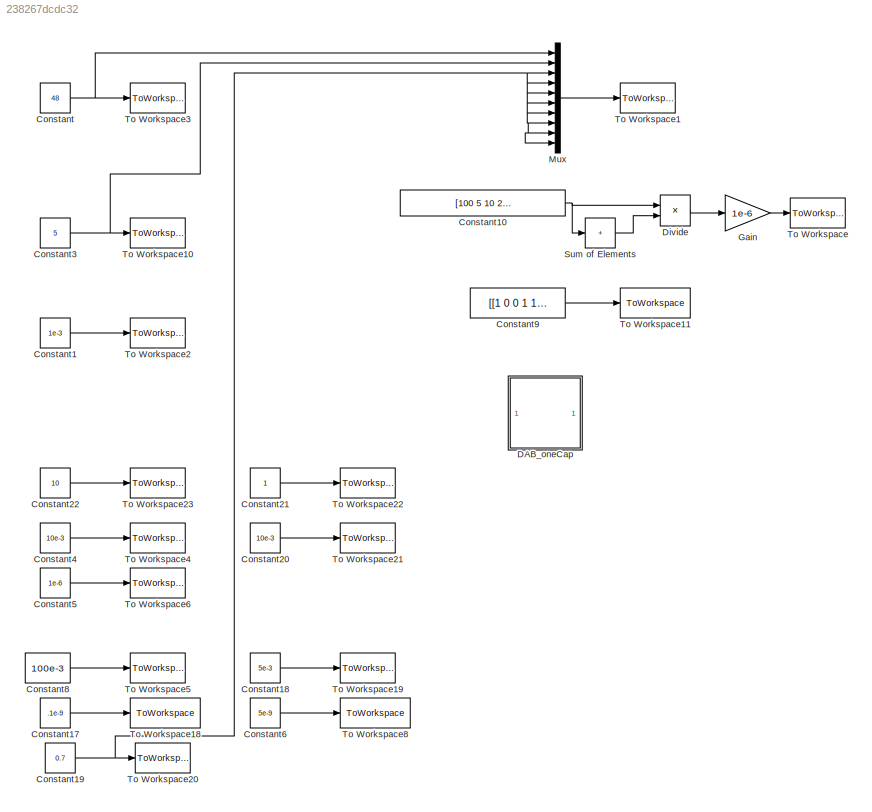
MODEL slx_238267dcdc32
KIND model
CONFIG AbsTol = auto
CONFIG EnableMultiTasking = off
CONFIG FixedStep = auto
CONFIG MaxStep = auto
CONFIG MinStep = auto
CONFIG RelTol = 1e-3
CONFIG SampleTimeConstraint = Unconstrained
CONFIG SolverName = VariableStepAuto
CONFIG StartTime = 0.0
CONFIG StopTime = 10.0
BLOCK [Constant] Constant
  Value = 48
BLOCK [Constant] Constant1
  Value = 1e-3
BLOCK [Constant] Constant10
  Value = [100 5 10 2 100 5 10 2]
BLOCK [Constant] Constant17
  Value = .1e-9
BLOCK [Constant] Constant18
  Value = 5e-3
BLOCK [Constant] Constant19
  Value = 0.7
BLOCK [Constant] Constant20
  Value = 10e-3
BLOCK [Constant] Constant21
BLOCK [Constant] Constant22
  Value = 10
BLOCK [Constant] Constant3
  Value = 5
BLOCK [Constant] Constant4
  Value = 10e-3
BLOCK [Constant] Constant5
  Value = 1e-6
BLOCK [Constant] Constant6
  Value = 5e-9
BLOCK [Constant] Constant8
  Value = 100e-3
BLOCK [Constant] Constant9
  Value = [[1 0 0 1 1 0 0 1; 0 0 0 0 1 0 0 1; 0 1 1 0 1 0 0 1; 0 1 1 0 0 0 0 0; 0 1 1 0 0 1 1 0; 0 0 0 0 0 1 1 0; 1 0 0 1 0 1 1 0; 1 0 0 1 0 0 0 0], zeros(8,8)]
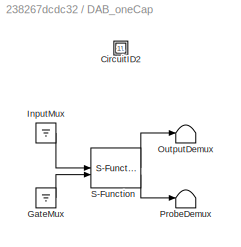
BLOCK [SubSystem] DAB_oneCap
  CopyFcn = plecs('sl', 203);
  DeleteFcn = plecs('sl', 205);
  DestroyFcn = plecs('sl', 207);
  ErrorFcn = plerrorfcn
  InitFcn = plecs('sl', 214);
  LoadFcn = plecs('sl', 200);
  NameChangeFcn = plecs('sl', 210);
  OpenFcn = plecs('sl', 202);
  PostSaveFcn = plecs('sl', 201);
  PreCopyFcn = plecs('sl', 216);
  PreSaveFcn = plecs('sl', 211);
  StartFcn = plecs('sl', 208);
  StopFcn = plecs('sl', 209);
  UndoDeleteFcn = plecs('sl', 206);
BLOCK [SubSystem] DAB_oneCap/ CircuitID2 
BLOCK [Ground] DAB_oneCap/ GateMux 
BLOCK [Ground] DAB_oneCap/ InputMux 
BLOCK [Terminator] DAB_oneCap/ OutputDemux 
BLOCK [Terminator] DAB_oneCap/ ProbeDemux 
BLOCK [S-Function] DAB_oneCap/ S-Function 
  EnableBusSupport = off
  FunctionName = plecs
  SFcnIsStateOwnerBlock = off
  SFunctionDeploymentMode = off
BLOCK [Product] Divide
  Inputs = */
BLOCK [Gain] Gain
  Gain = 1e-6
BLOCK [Mux] Mux
  DisplayOption = bar
  Inputs = 10
BLOCK [Sum] Sum of Elements
  IconShape = rectangular
  Inputs = +
BLOCK [ToWorkspace] To Workspace
  FixptAsFi = on
  MaxDataPoints = inf
  SampleTime = -1
  VariableName = ts
BLOCK [ToWorkspace] To Workspace1
  FixptAsFi = on
  MaxDataPoints = inf
  SampleTime = -1
  VariableName = us
BLOCK [ToWorkspace] To Workspace10
  FixptAsFi = on
  MaxDataPoints = inf
  SampleTime = -1
  VariableName = Vo
BLOCK [ToWorkspace] To Workspace11
  FixptAsFi = on
  MaxDataPoints = inf
  SampleTime = -1
  VariableName = swvec
BLOCK [ToWorkspace] To Workspace18
  FixptAsFi = on
  MaxDataPoints = inf
  SampleTime = -1
  VariableName = Cp
BLOCK [ToWorkspace] To Workspace19
  FixptAsFi = on
  MaxDataPoints = inf
  SampleTime = -1
  VariableName = rons
BLOCK [ToWorkspace] To Workspace2
  FixptAsFi = on
  MaxDataPoints = inf
  SampleTime = -1
  VariableName = Lm
BLOCK [ToWorkspace] To Workspace20
  FixptAsFi = on
  MaxDataPoints = inf
  SampleTime = -1
  VariableName = Vf
BLOCK [ToWorkspace] To Workspace21
  FixptAsFi = on
  MaxDataPoints = inf
  SampleTime = -1
  VariableName = Rs
BLOCK [ToWorkspace] To Workspace22
  FixptAsFi = on
  MaxDataPoints = inf
  SampleTime = -1
  VariableName = ns
BLOCK [ToWorkspace] To Workspace23
  FixptAsFi = on
  MaxDataPoints = inf
  SampleTime = -1
  VariableName = np
BLOCK [ToWorkspace] To Workspace3
  FixptAsFi = on
  MaxDataPoints = inf
  SampleTime = -1
  VariableName = Vg
BLOCK [ToWorkspace] To Workspace4
  FixptAsFi = on
  MaxDataPoints = inf
  SampleTime = -1
  VariableName = Rp
BLOCK [ToWorkspace] To Workspace5
  FixptAsFi = on
  MaxDataPoints = inf
  SampleTime = -1
  VariableName = ronp
BLOCK [ToWorkspace] To Workspace6
  FixptAsFi = on
  MaxDataPoints = inf
  SampleTime = -1
  VariableName = Lp
BLOCK [ToWorkspace] To Workspace8
  FixptAsFi = on
  MaxDataPoints = inf
  SampleTime = -1
  VariableName = Cs
NET Constant10:1 -> Divide:1, Sum of Elements:1
LINE Constant17:1 -> To Workspace18:1
LINE Constant18:1 -> To Workspace19:1
NET Constant19:1 -> Mux:10, Mux:3, Mux:4, Mux:5, Mux:6, Mux:7, Mux:8, Mux:9, To Workspace20:1
LINE Constant1:1 -> To Workspace2:1
LINE Constant20:1 -> To Workspace21:1
LINE Constant21:1 -> To Workspace22:1
LINE Constant22:1 -> To Workspace23:1
NET Constant3:1 -> Mux:2, To Workspace10:1
LINE Constant4:1 -> To Workspace4:1
LINE Constant5:1 -> To Workspace6:1
LINE Constant6:1 -> To Workspace8:1
LINE Constant8:1 -> To Workspace5:1
LINE Constant9:1 -> To Workspace11:1
NET Constant:1 -> Mux:1, To Workspace3:1
LINE Divide:1 -> Gain:1
LINE Gain:1 -> To Workspace:1
LINE Mux:1 -> To Workspace1:1
LINE Sum of Elements:1 -> Divide:2
note: NET lines group one-source signal fan-out (src -> all destinations, sorted); 1:1 wires keep LINE
